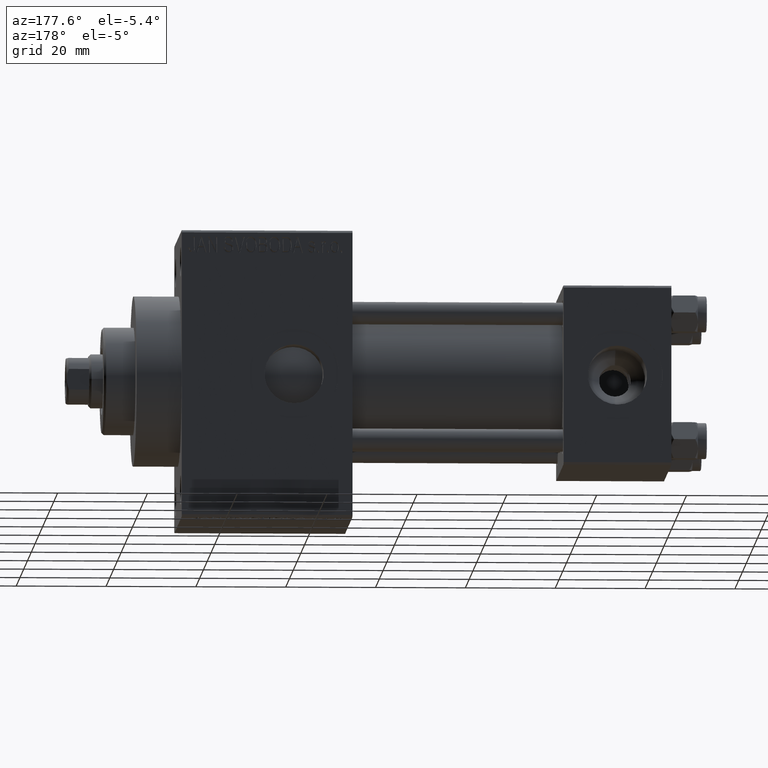
[diagram: clean part render]
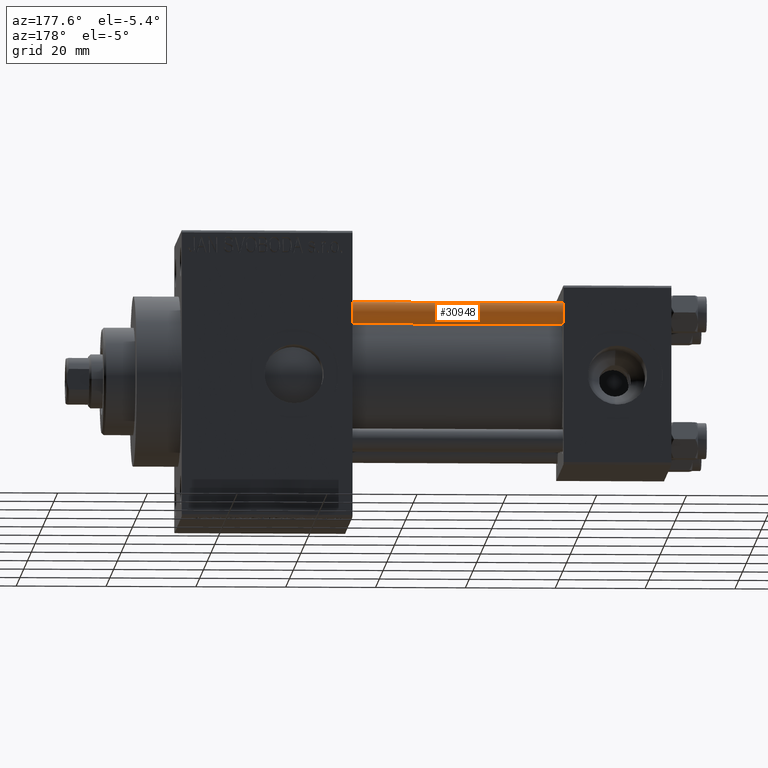
[diagram: same view with one face highlighted and labeled with its STEP entity id]
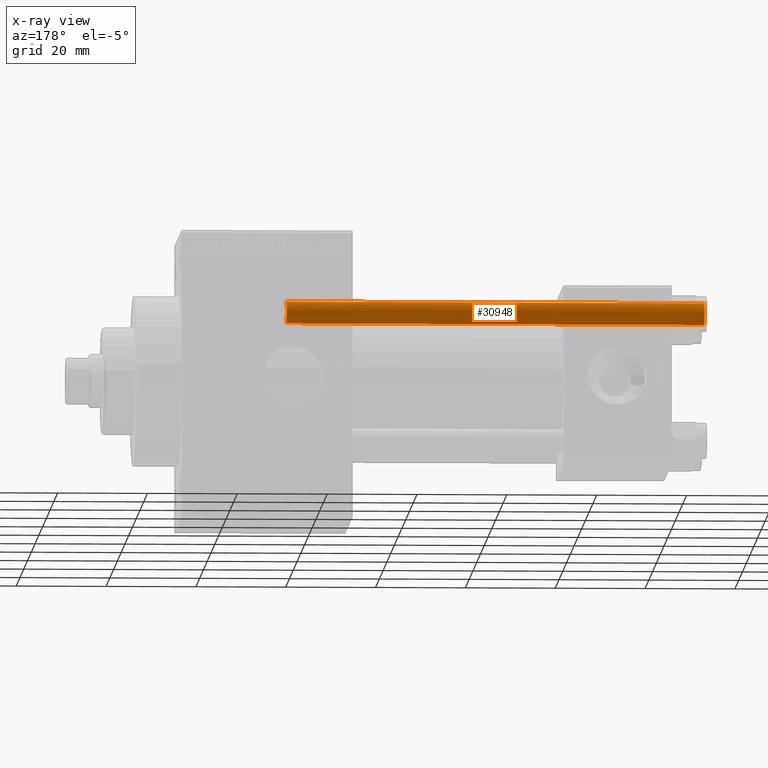
[diagram: x-ray of the same camera — body ghosted, the highlighted face saturated]
A machine part, auxiliary view. The second image highlights one B-rep face of the part: STEP entity #30948.
The next image is the same camera in x-ray: the body ghosted, the highlighted face saturated — about 0% of this face is hidden behind the body in this view.
In plain terms, the highlighted cylindrical surface (edge-blend (fillet) strip) has radius 2.5 mm, axis along (-1, -0, 0).
Its self-contained STEP definition (entity closure, byte-faithful):
#3776 = VERTEX_POINT ( 'NONE', #36908 ) ;
#6125 = VERTEX_POINT ( 'NONE', #17029 ) ;
#7916 = DIRECTION ( 'NONE',  ( 1.000000000000000000, 0.000000000000000000, 0.000000000000000000 ) ) ;
#8439 = DIRECTION ( 'NONE',  ( 1.000000000000000000, 0.000000000000000000, 0.000000000000000000 ) ) ;
#10337 = ORIENTED_EDGE ( 'NONE', *, *, #13567, .T. ) ;
#13567 = EDGE_CURVE ( 'NONE', #19242, #3776, #47600, .T. ) ;
#14263 = LINE ( 'NONE', #33099, #18554 ) ;
#16389 = CIRCLE ( 'NONE', #36976, 2.500000000000000000 ) ;
#17029 = CARTESIAN_POINT ( 'NONE',  ( -2.500000000000000000, 0.000000000000000000, 93.50000000000001421 ) ) ;
#18554 = VECTOR ( 'NONE', #36075, 1000.000000000000000 ) ;
#19081 = CARTESIAN_POINT ( 'NONE',  ( 0.000000000000000000, 0.000000000000000000, 0.5000000000000004441 ) ) ;
#19242 = VERTEX_POINT ( 'NONE', #46092 ) ;
#20729 = ORIENTED_EDGE ( 'NONE', *, *, #32369, .F. ) ;
#20820 = DIRECTION ( 'NONE',  ( -0.000000000000000000, -0.000000000000000000, -1.000000000000000000 ) ) ;
#21021 = VECTOR ( 'NONE', #46750, 1000.000000000000000 ) ;
#21284 = CARTESIAN_POINT ( 'NONE',  ( 2.500000000000000000, 3.061616997868383141E-16, 93.50000000000001421 ) ) ;
#23824 = DIRECTION ( 'NONE',  ( -1.000000000000000000, 0.000000000000000000, 0.000000000000000000 ) ) ;
#23946 = LINE ( 'NONE', #31644, #21021 ) ;
#24852 = EDGE_LOOP ( 'NONE', ( #44246, #35291, #10337, #20729 ) ) ;
#26378 = EDGE_CURVE ( 'NONE', #45150, #19242, #14263, .T. ) ;
#30948 = ADVANCED_FACE ( 'NONE', ( #35457 ), #42897, .T. ) ;
#31510 = DIRECTION ( 'NONE',  ( 0.000000000000000000, 0.000000000000000000, -1.000000000000000000 ) ) ;
#31644 = CARTESIAN_POINT ( 'NONE',  ( -2.500000000000000000, 0.000000000000000000, 94.00000000000000000 ) ) ;
#32369 = EDGE_CURVE ( 'NONE', #6125, #3776, #23946, .T. ) ;
#33099 = CARTESIAN_POINT ( 'NONE',  ( 2.500000000000000000, 3.061616997868383141E-16, 94.00000000000000000 ) ) ;
#34168 = AXIS2_PLACEMENT_3D ( 'NONE', #19081, #34954, #7916 ) ;
#34954 = DIRECTION ( 'NONE',  ( -0.000000000000000000, -0.000000000000000000, 1.000000000000000000 ) ) ;
#35291 = ORIENTED_EDGE ( 'NONE', *, *, #26378, .T. ) ;
#35457 = FACE_OUTER_BOUND ( 'NONE', #24852, .T. ) ;
#36075 = DIRECTION ( 'NONE',  ( -0.000000000000000000, -0.000000000000000000, -1.000000000000000000 ) ) ;
#36182 = CARTESIAN_POINT ( 'NONE',  ( 0.000000000000000000, 0.000000000000000000, 94.00000000000000000 ) ) ;
#36586 = EDGE_CURVE ( 'NONE', #6125, #45150, #16389, .T. ) ;
#36908 = CARTESIAN_POINT ( 'NONE',  ( -2.500000000000000000, 0.000000000000000000, 0.5000000000000004441 ) ) ;
#36976 = AXIS2_PLACEMENT_3D ( 'NONE', #45873, #31510, #8439 ) ;
#42897 = CYLINDRICAL_SURFACE ( 'NONE', #47107, 2.500000000000000000 ) ;
#44246 = ORIENTED_EDGE ( 'NONE', *, *, #36586, .T. ) ;
#45150 = VERTEX_POINT ( 'NONE', #21284 ) ;
#45873 = CARTESIAN_POINT ( 'NONE',  ( 0.000000000000000000, 0.000000000000000000, 93.50000000000001421 ) ) ;
#46092 = CARTESIAN_POINT ( 'NONE',  ( 2.500000000000000000, 3.061616997868383141E-16, 0.5000000000000004441 ) ) ;
#46750 = DIRECTION ( 'NONE',  ( -0.000000000000000000, -0.000000000000000000, -1.000000000000000000 ) ) ;
#47107 = AXIS2_PLACEMENT_3D ( 'NONE', #36182, #20820, #23824 ) ;
#47600 = CIRCLE ( 'NONE', #34168, 2.500000000000000000 ) ;